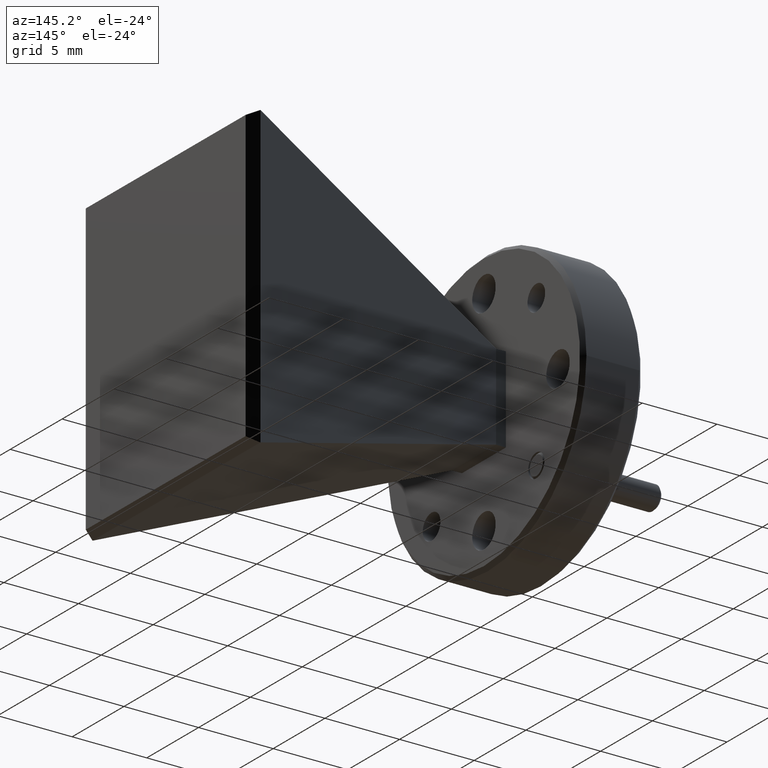
[diagram: clean part render]
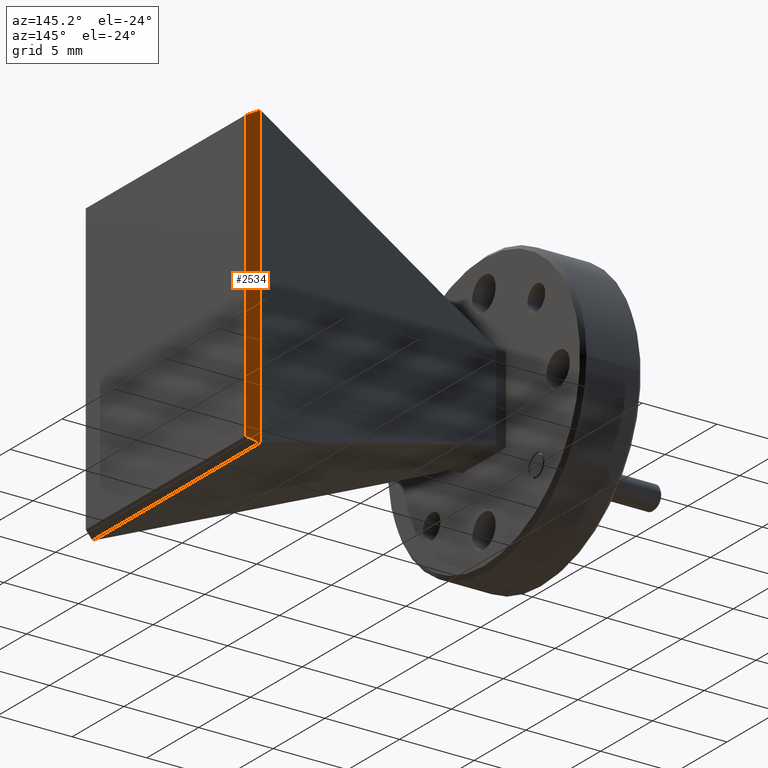
[diagram: same view with one face highlighted and labeled with its STEP entity id]
A machine part, auxiliary view. The second image highlights one B-rep face of the part: STEP entity #2534.
In plain terms, the highlighted planar face has unit normal (0.4743, 0.8804, 0).
Its self-contained STEP definition (entity closure, byte-faithful):
#73 = ORIENTED_EDGE ( 'NONE', *, *, #2059, .F. ) ;
#79 = DIRECTION ( 'NONE',  ( 0.8398863417638781081, -0.4524907512338394167, -0.2997383074722447249 ) ) ;
#94 = CARTESIAN_POINT ( 'NONE',  ( -1.213673718292406889, 0.4772726540102099624, 0.7861574694021060683 ) ) ;
#121 = LINE ( 'NONE', #788, #554 ) ;
#227 = EDGE_CURVE ( 'NONE', #631, #1941, #2142, .T. ) ;
#265 = EDGE_CURVE ( 'NONE', #1941, #2050, #702, .T. ) ;
#323 = CARTESIAN_POINT ( 'NONE',  ( -0.1978909737986590534, -0.06998269982856712701, 0.01914532287208929595 ) ) ;
#353 = AXIS2_PLACEMENT_3D ( 'NONE', #94, #903, #2138 ) ;
#393 = CARTESIAN_POINT ( 'NONE',  ( -1.213673718292406889, 0.4772726540102099624, 0.4051328065571688231 ) ) ;
#455 = VERTEX_POINT ( 'NONE', #1384 ) ;
#490 = CARTESIAN_POINT ( 'NONE',  ( -1.242410449409350193, 0.4927546358028919715, 0.3919130227061258243 ) ) ;
#539 = VECTOR ( 'NONE', #1196, 39.37007874015748854 ) ;
#546 = LINE ( 'NONE', #2401, #539 ) ;
#554 = VECTOR ( 'NONE', #1797, 39.37007874015748143 ) ;
#631 = VERTEX_POINT ( 'NONE', #2274 ) ;
#702 = LINE ( 'NONE', #323, #807 ) ;
#724 = VECTOR ( 'NONE', #928, 39.37007874015748854 ) ;
#750 = EDGE_CURVE ( 'NONE', #2050, #2310, #2323, .T. ) ;
#788 = CARTESIAN_POINT ( 'NONE',  ( -1.094461827616061811, 0.4130469662167169931, 1.110679257852235091 ) ) ;
#791 = ORIENTED_EDGE ( 'NONE', *, *, #959, .F. ) ;
#807 = VECTOR ( 'NONE', #79, 39.37007874015748854 ) ;
#811 = CARTESIAN_POINT ( 'NONE',  ( -1.213673718292406889, 0.4772726540102099624, 1.190657469402106150 ) ) ;
#877 = ORIENTED_EDGE ( 'NONE', *, *, #1860, .F. ) ;
#903 = DIRECTION ( 'NONE',  ( 0.4742982940989853846, 0.8803642020293602766, 0.000000000000000000 ) ) ;
#928 = DIRECTION ( 'NONE',  ( 0.8124707996201472326, -0.4377205631223778370, 0.3850868842020292449 ) ) ;
#959 = EDGE_CURVE ( 'NONE', #1479, #455, #121, .T. ) ;
#1105 = ORIENTED_EDGE ( 'NONE', *, *, #227, .F. ) ;
#1196 = DIRECTION ( 'NONE',  ( -0.8398863417638777751, 0.4524907512338391391, -0.2997383074722456686 ) ) ;
#1320 = CARTESIAN_POINT ( 'NONE',  ( -1.094461827616061145, 0.4130469662167166045, 0.4616356809519774895 ) ) ;
#1384 = CARTESIAN_POINT ( 'NONE',  ( -1.241928330808557801, 0.4924948932674932389, 1.180573974394806491 ) ) ;
#1479 = VERTEX_POINT ( 'NONE', #1938 ) ;
#1509 = FACE_OUTER_BOUND ( 'NONE', #1902, .T. ) ;
#1525 = VECTOR ( 'NONE', #1526, 39.37007874015748143 ) ;
#1526 = DIRECTION ( 'NONE',  ( 0.000000000000000000, 0.000000000000000000, -1.000000000000000000 ) ) ;
#1533 = PLANE ( 'NONE',  #353 ) ;
#1608 = CARTESIAN_POINT ( 'NONE',  ( -1.241928330808556247, 0.4924948932674925173, 0.3917409644094060894 ) ) ;
#1687 = ORIENTED_EDGE ( 'NONE', *, *, #265, .F. ) ;
#1797 = DIRECTION ( 'NONE',  ( -0.8124707996201480098, 0.4377205631223782811, 0.3850868842020269689 ) ) ;
#1833 = LINE ( 'NONE', #811, #2413 ) ;
#1860 = EDGE_CURVE ( 'NONE', #2310, #1479, #1833, .T. ) ;
#1902 = EDGE_LOOP ( 'NONE', ( #1105, #73, #791, #877, #2026, #1687 ) ) ;
#1938 = CARTESIAN_POINT ( 'NONE',  ( -1.213673718292406889, 0.4772726540102099624, 1.167182132247043258 ) ) ;
#1941 = VERTEX_POINT ( 'NONE', #490 ) ;
#2026 = ORIENTED_EDGE ( 'NONE', *, *, #750, .F. ) ;
#2050 = VERTEX_POINT ( 'NONE', #1608 ) ;
#2059 = EDGE_CURVE ( 'NONE', #455, #631, #546, .T. ) ;
#2138 = DIRECTION ( 'NONE',  ( 0.000000000000000000, 0.000000000000000000, -1.000000000000000000 ) ) ;
#2142 = LINE ( 'NONE', #2572, #1525 ) ;
#2274 = CARTESIAN_POINT ( 'NONE',  ( -1.242410449409350193, 0.4927546358028919715, 1.180401916098086312 ) ) ;
#2310 = VERTEX_POINT ( 'NONE', #393 ) ;
#2323 = LINE ( 'NONE', #1320, #724 ) ;
#2401 = CARTESIAN_POINT ( 'NONE',  ( -0.1978909737986603579, -0.06998269982856651639, 1.553169615932124881 ) ) ;
#2413 = VECTOR ( 'NONE', #2652, 39.37007874015748143 ) ;
#2534 = ADVANCED_FACE ( 'NONE', ( #1509 ), #1533, .T. ) ;
#2572 = CARTESIAN_POINT ( 'NONE',  ( -1.242410449409350193, 0.4927546358028918605, 0.3816574694021060421 ) ) ;
#2652 = DIRECTION ( 'NONE',  ( 0.000000000000000000, 0.000000000000000000, 1.000000000000000000 ) ) ;